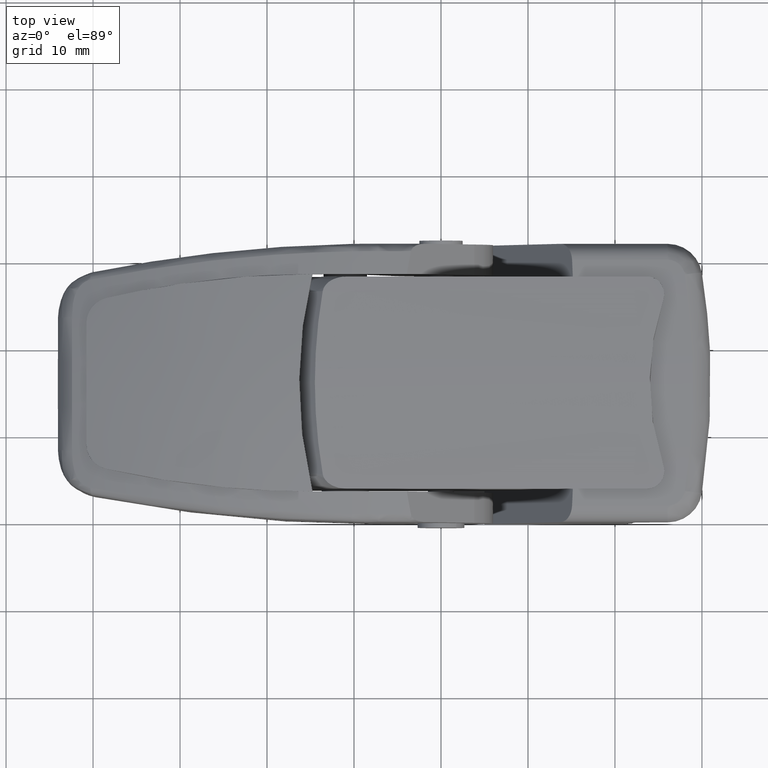
[diagram: clean part render]
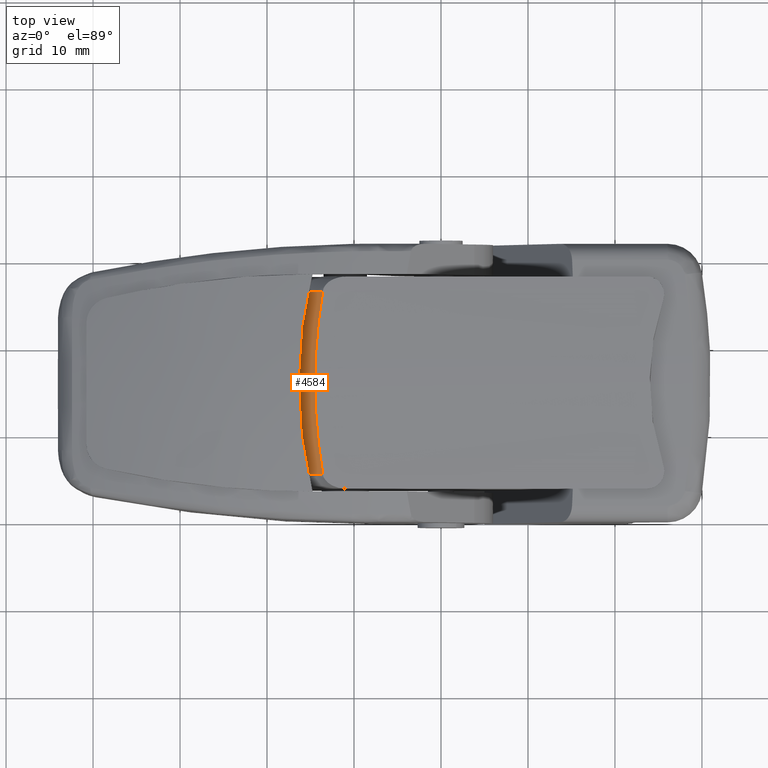
[diagram: same view with one face highlighted and labeled with its STEP entity id]
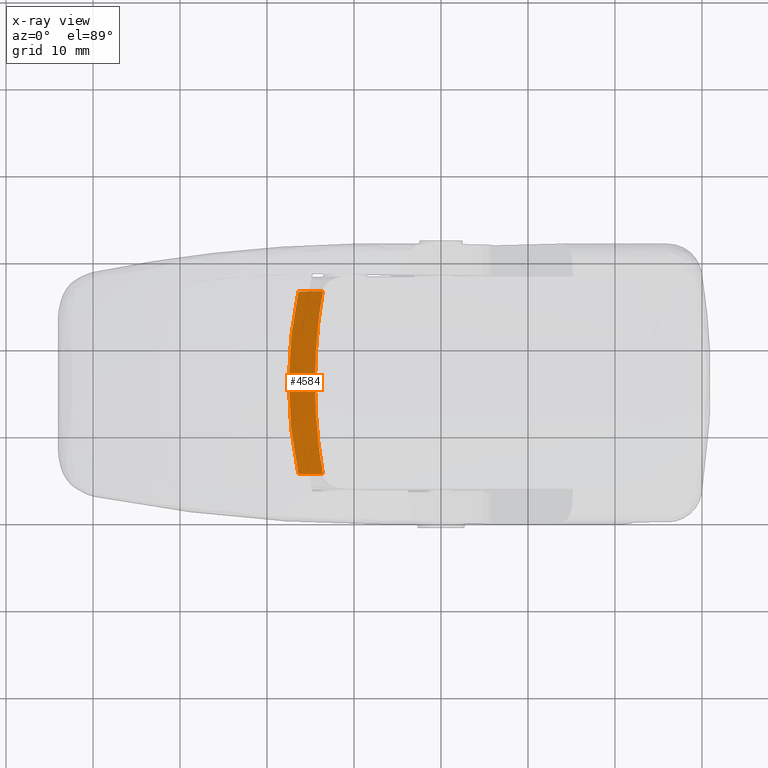
[diagram: x-ray of the same camera — body ghosted, the highlighted face saturated]
A machine part, top view. The second image highlights one B-rep face of the part: STEP entity #4584.
The next image is the same camera in x-ray: the body ghosted, the highlighted face saturated — about 0% of this face is hidden behind the body in this view.
In plain terms, the highlighted conical surface has half-angle 45 deg.
Its self-contained STEP definition (entity closure, byte-faithful):
#139=B_SPLINE_CURVE_WITH_KNOTS('',3,(#8991,#8992,#8993,#8994,#8995,#8996,
#8997,#8998,#8999,#9000),.UNSPECIFIED.,.F.,.F.,(4,2,2,2,4),(22.3000721552577,
22.4066340783082,23.3214016062008,24.2361691340934,24.3427310571439),
 .UNSPECIFIED.);
#216=CONICAL_SURFACE('',#5003,48.8633333333333,0.785398163397449);
#596=FACE_OUTER_BOUND('',#913,.T.);
#913=EDGE_LOOP('',(#3892,#3893,#3894,#3895));
#1856=CIRCLE('',#4982,2466.99011697642);
#1865=CIRCLE('',#4995,2466.99011707859);
#1868=CIRCLE('',#5002,50.3633333333334);
#2205=VERTEX_POINT('',#8827);
#2209=VERTEX_POINT('',#8869);
#2221=VERTEX_POINT('',#8926);
#2222=VERTEX_POINT('',#8939);
#2784=EDGE_CURVE('',#2209,#2205,#1856,.T.);
#2798=EDGE_CURVE('',#2221,#2222,#1865,.T.);
#2808=EDGE_CURVE('',#2209,#2222,#1868,.T.);
#2809=EDGE_CURVE('',#2205,#2221,#139,.F.);
#3892=ORIENTED_EDGE('',*,*,#2784,.F.);
#3893=ORIENTED_EDGE('',*,*,#2808,.T.);
#3894=ORIENTED_EDGE('',*,*,#2798,.F.);
#3895=ORIENTED_EDGE('',*,*,#2809,.F.);
#4584=ADVANCED_FACE('',(#596),#216,.T.);
#4982=AXIS2_PLACEMENT_3D('',#8878,#5981,#5982);
#4995=AXIS2_PLACEMENT_3D('',#8940,#6011,#6012);
#5002=AXIS2_PLACEMENT_3D('',#8989,#6029,#6030);
#5003=AXIS2_PLACEMENT_3D('',#8990,#6031,#6032);
#5981=DIRECTION('center_axis',(-0.225375693532107,0.225015520657126,-0.947931333076571));
#5982=DIRECTION('ref_axis',(-0.660317663096886,0.680129777481026,0.318440056503383));
#6011=DIRECTION('center_axis',(-0.225375693541481,0.225015520666768,0.947931333072053));
#6012=DIRECTION('ref_axis',(-0.661449670488712,0.679025611306013,-0.318447095450515));
#6029=DIRECTION('center_axis',(-1.11022302462516E-15,1.,0.));
#6030=DIRECTION('ref_axis',(0.97021642729499,1.07715661645246E-15,0.242239724667417));
#6031=DIRECTION('center_axis',(1.11022302462516E-15,-1.,0.));
#6032=DIRECTION('ref_axis',(0.916044478739108,1.01701367187691E-15,0.401076692132061));
#8827=CARTESIAN_POINT('',(-24.6017738256782,17.7239651058569,-10.5120593632689));
#8869=CARTESIAN_POINT('',(-27.3944250066859,14.9999999999999,-10.4946933142762));
#8878=CARTESIAN_POINT('Origin',(1604.39537497256,-1660.14947227535,-796.100530537127));
#8926=CARTESIAN_POINT('',(-24.6017738256782,17.7239651058569,10.5120593632688));
#8939=CARTESIAN_POINT('',(-27.3944250066859,14.9999999999999,10.4946933142762));
#8940=CARTESIAN_POINT('Origin',(1604.39537503386,-1660.14947233518,796.10053060308));
#8989=CARTESIAN_POINT('Origin',(21.8633333333334,15.,-4.44089209850063E-15));
#8990=CARTESIAN_POINT('Origin',(21.8633333333334,16.5,-4.44089209850063E-15));
#8991=CARTESIAN_POINT('Ctrl Pts',(-24.6017720683449,17.7239650999736,10.512059060173));
#8992=CARTESIAN_POINT('Ctrl Pts',(-24.6656718312195,17.7434494132058,10.1413106114014));
#8993=CARTESIAN_POINT('Ctrl Pts',(-24.7260736210266,17.7618997376206,9.77056324978309));
#8994=CARTESIAN_POINT('Ctrl Pts',(-25.2715927167256,17.9287669325661,6.21878307632123));
#8995=CARTESIAN_POINT('Ctrl Pts',(-25.4999999999998,18.,3.04922509297546));
#8996=CARTESIAN_POINT('Ctrl Pts',(-25.4999999999998,18.,-3.04922509297542));
#8997=CARTESIAN_POINT('Ctrl Pts',(-25.2715927167256,17.9287669325661,-6.21878307632119));
#8998=CARTESIAN_POINT('Ctrl Pts',(-24.7260736210266,17.7618997376206,-9.77056324978307));
#8999=CARTESIAN_POINT('Ctrl Pts',(-24.6656718312195,17.7434494132058,-10.1413106114013));
#9000=CARTESIAN_POINT('Ctrl Pts',(-24.6017720683449,17.7239650999736,-10.512059060173));